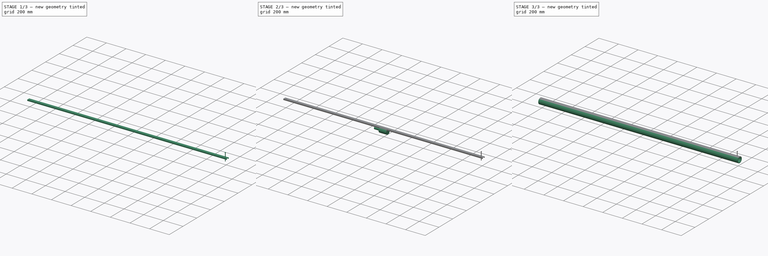
[diagram: build sequence overview — one tinted view per stage of 3, left to right]
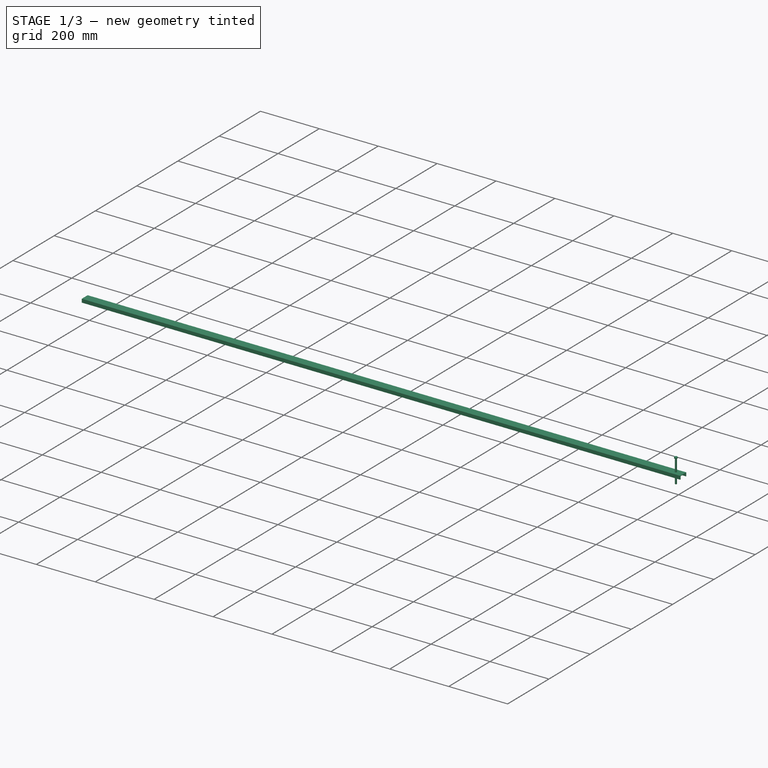
[diagram: stage 1 of 3 — iso view after this stage's code; geometry added in this stage tinted green]
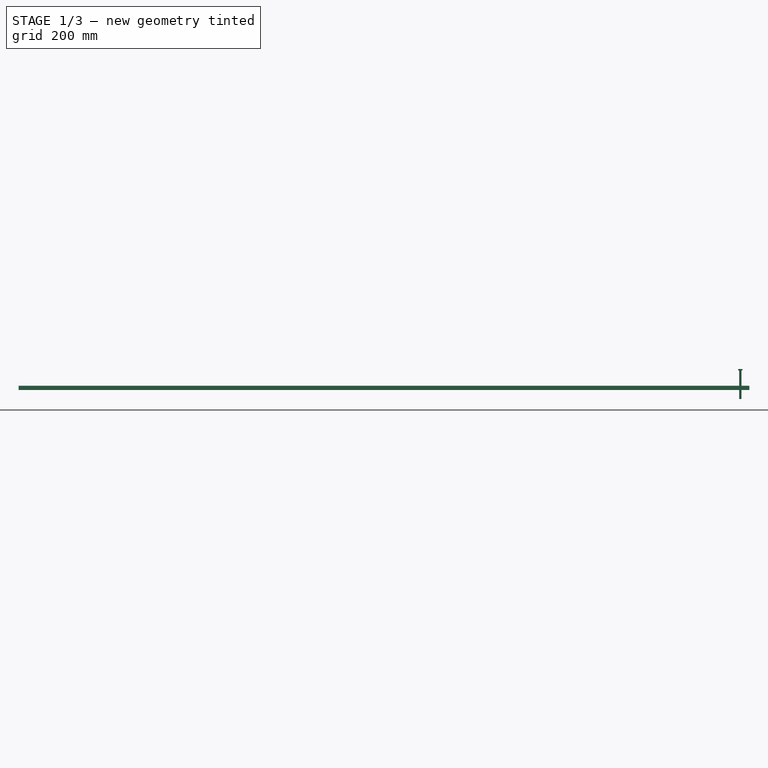
[diagram: stage 1 of 3 — front view after this stage's code; geometry added in this stage tinted green]
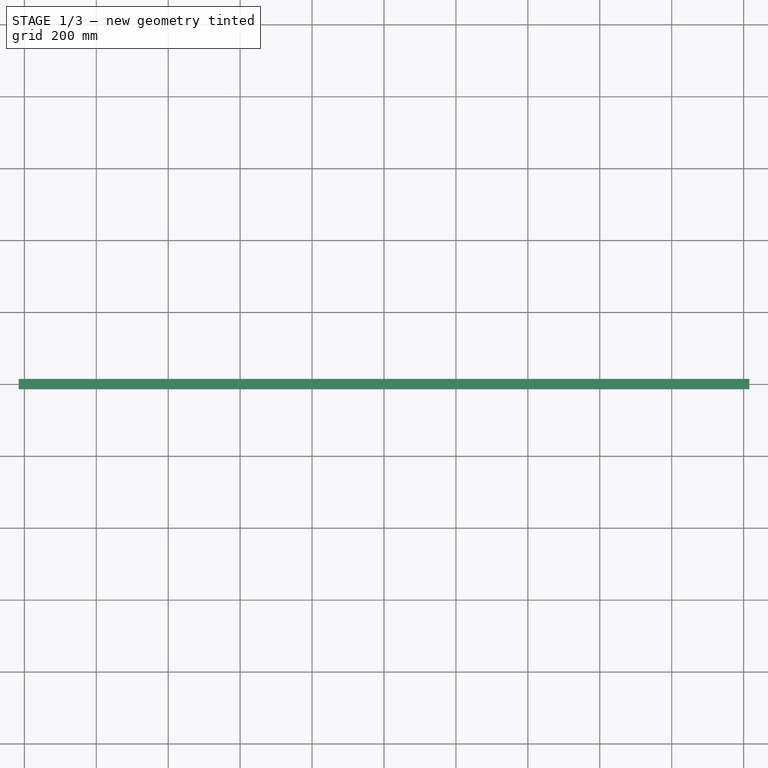
[diagram: stage 1 of 3 — top view after this stage's code; geometry added in this stage tinted green]
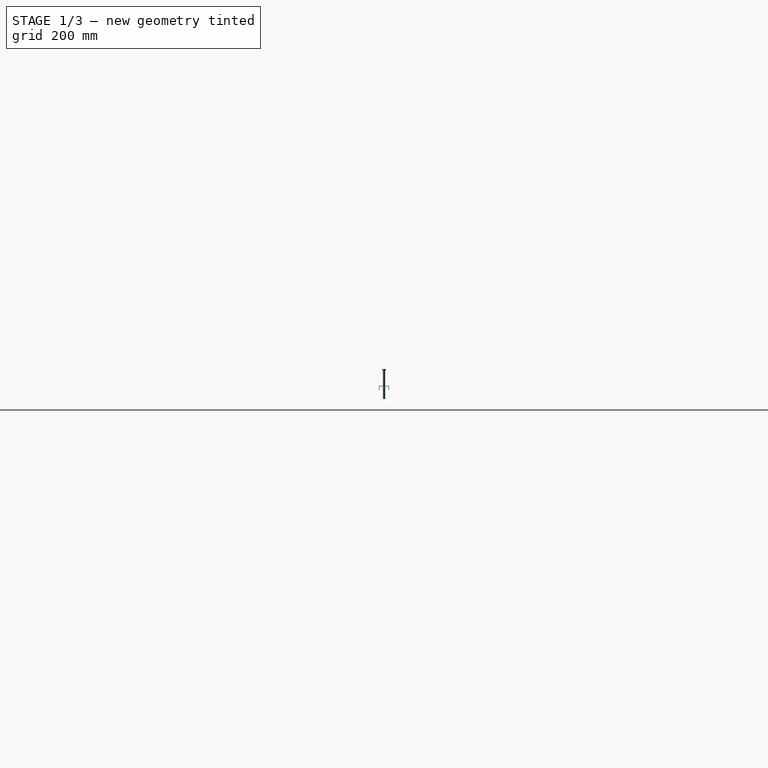
[diagram: stage 1 of 3 — right view after this stage's code; geometry added in this stage tinted green]
FCSTD DOCUMENT  (FreeCAD 0.19R21897 (Git))
Label: Roller
License: All rights reserved
LicenseURL: http://en.wikipedia.org/wiki/All_rights_reserved
objects: Sketcher::SketchObject×6, PartDesign::Pad×3, PartDesign::Body×3, App::Link×2, PartDesign::CoordinateSystem×2, PartDesign::Revolution×1, PartDesign::Pocket×1, PartDesign::Mirrored×1, Part::FeaturePython×1, App::Part×1
note: 23 computed .brp shape members not serialized (recipe doc carries the construction recipe); baked Part::Feature solids carry a one-line shape summary decoded from their .brp

FEATURE [PartDesign::Body] Body  label="Roller"
  Group = -> [Sketch003,Pad]
  Origin = -> Origin001
  Tip = -> Pad
FEATURE [Sketcher::SketchObject] Sketch004
  MapMode = 5
  Placement = pos=(0,0,0) rot=(0.57735,0.57735,0.57735;2.0944rad)
  Support = -> [YZ_Plane002]
  sketch-geometry (8):
    g0: LineSegment StartX=-12.7 StartY=14.7898 StartZ=0 EndX=-12.7 EndY=24.9779 EndZ=0
    g1: LineSegment StartX=-12.7 StartY=24.9779 StartZ=0 EndX=12.7 EndY=24.9779 EndZ=0
    g2: LineSegment StartX=12.7 StartY=24.9779 StartZ=0 EndX=12.7 EndY=14.7898 EndZ=0
    g3: LineSegment StartX=12.7 StartY=14.7898 StartZ=0 EndX=14.325 EndY=14.7898 EndZ=0
    g4: LineSegment StartX=14.325 StartY=14.7898 StartZ=0 EndX=14.325 EndY=26.5666 EndZ=0
    g5: LineSegment StartX=14.325 StartY=26.5666 StartZ=0 EndX=-14.325 EndY=26.5666 EndZ=0
    g6: LineSegment StartX=-14.325 StartY=26.5666 StartZ=0 EndX=-14.325 EndY=14.7898 EndZ=0
    g7: LineSegment StartX=-14.325 StartY=14.7898 StartZ=0 EndX=-12.7 EndY=14.7898 EndZ=0
  constraints (20):
    c: Coincident(g0,g1)
    c: Horizontal(g1)
    c: Coincident(g1,g2)
    c: Coincident(g2,g3)
    c: Horizontal(g3)
    c: Coincident(g3,g4)
    c: Coincident(g4,g5)
    c: Horizontal(g5)
    c: Coincident(g5,g6)
    c: Vertical(g6)
    c: Coincident(g6,g7)
    c: Coincident(g7,g0)
    c: Equal(g7,g3)
    c: Horizontal(g7)
    c: Vertical(g4)
    c: Vertical(g0)
    c: Symmetric(g2,g0,g-2)
    c: Vertical(g2)
    c: DistanceX(g1,g1) = 25.4
    c: DistanceX(g7,g7) = 1.625
FEATURE [PartDesign::Pad] Pad001
  Length = 2032
  Length2 = 100
  Midplane = true
  Placement = pos=(0,0,0) rot=(0.57735,0.57735,0.57735;2.0944rad)
  Profile = -> Sketch004
  Type = 0
FEATURE [PartDesign::Body] Body001  label="ClampChannel"
  Group = -> [Sketch004,Pad001,Sketch,Pocket,Mirrored]
  Origin = -> Origin002
  Placement = pos=(0,0,19.05) rot=(0,0,1;0rad)
  Tip = -> Mirrored
FEATURE [Part::FeaturePython] Screw  label="M6x79.375-Screw"  # Fasteners workbench fastener (typed FeaturePython)
  Placement = pos=(991,0,69) rot=(0,0,1;0rad)
  diameter = 8
  invert = false
  length = 14
  lengthCustom = 79.375
  matchOuter = false
  offset = 0
  thread = false
  type = 14
FEATURE [App::Link] Link  label="1/4x20tpi-screw2"
  LinkPlacement = pos=(-990.4,1.10865e-05,69.85) rot=(0,0,1;0rad)
  LinkedObject = -> Screw
  Placement = pos=(-990.4,1.10865e-05,69.85) rot=(0,0,1;0rad)
FEATURE [App::Part] Part001
  Group = -> [Link002,Body,Body001,Body002,RollerAxis,Hex,Screw,Link]
  Origin = -> Origin004
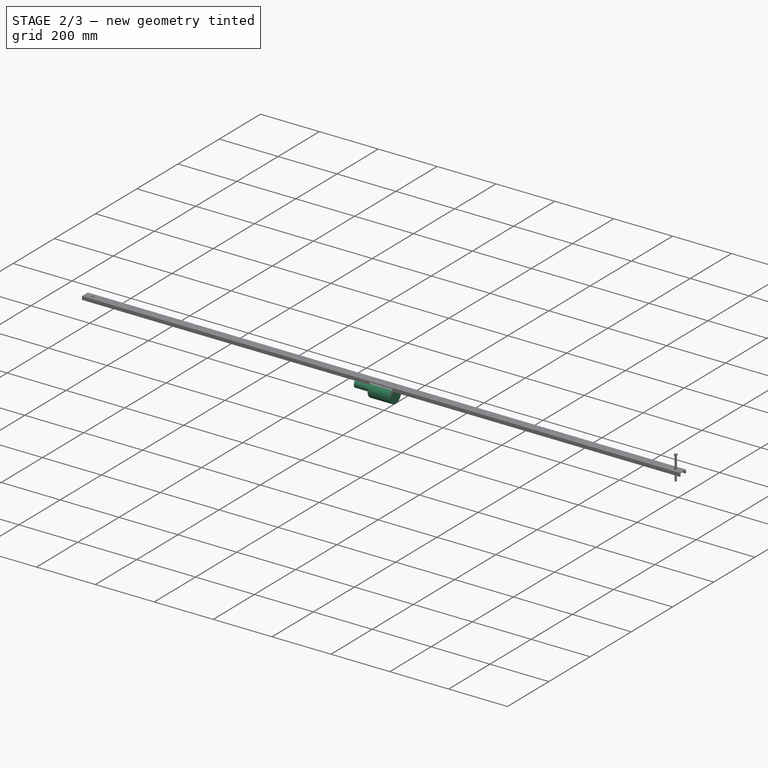
[diagram: stage 2 of 3 — iso view after this stage's code; geometry added in this stage tinted green]
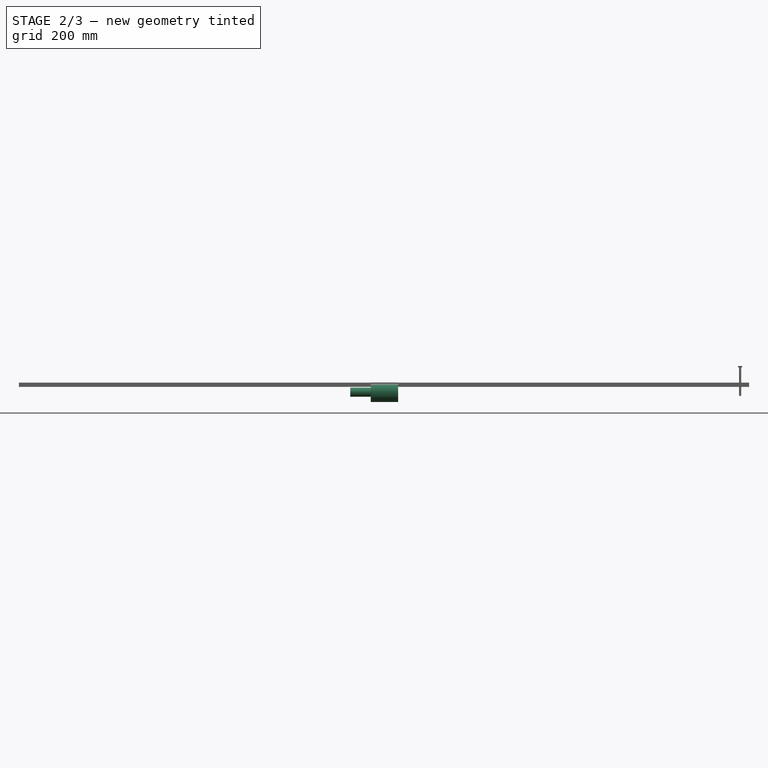
[diagram: stage 2 of 3 — front view after this stage's code; geometry added in this stage tinted green]
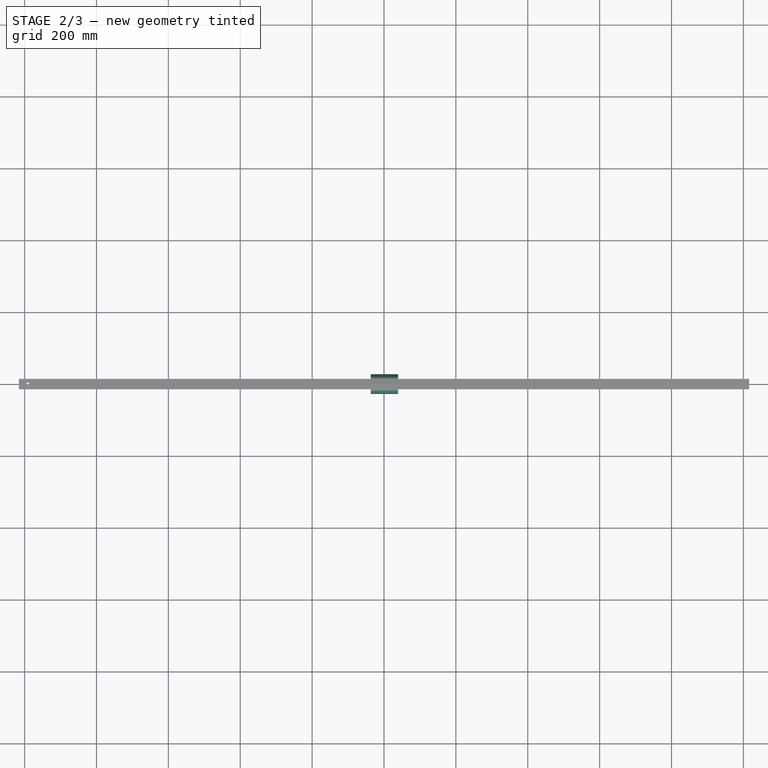
[diagram: stage 2 of 3 — top view after this stage's code; geometry added in this stage tinted green]
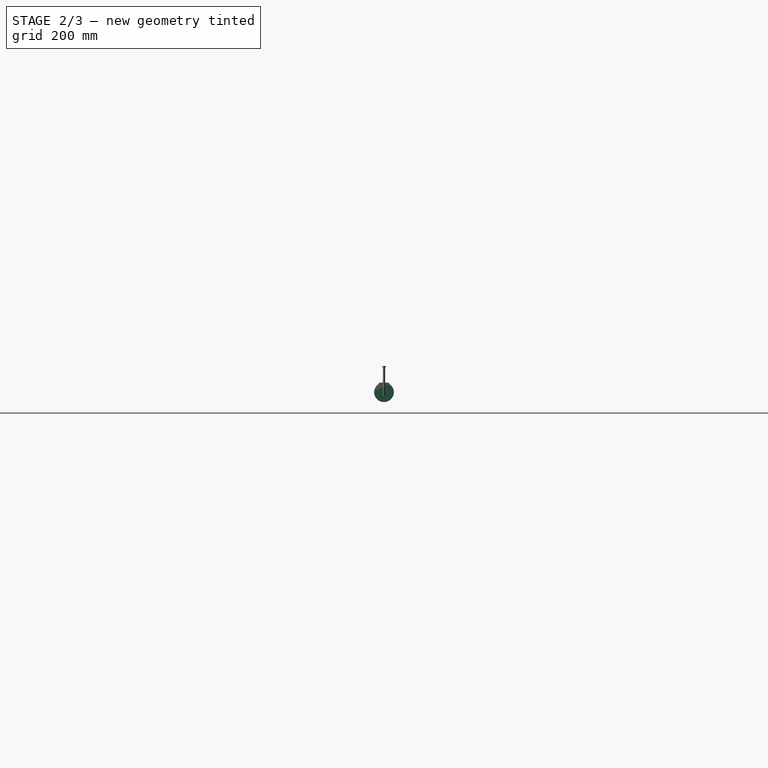
[diagram: stage 2 of 3 — right view after this stage's code; geometry added in this stage tinted green]
FEATURE [Sketcher::SketchObject] Sketch005
  MapMode = 5
  Support = -> [XY_Plane003]
  sketch-geometry (6):
    g0: LineSegment StartX=39.4665 StartY=0 StartZ=0 EndX=39.4665 EndY=27.3939 EndZ=0
    g1: LineSegment StartX=39.4665 StartY=27.3939 StartZ=0 EndX=-36.7335 EndY=27.3939 EndZ=0
    g2: LineSegment StartX=-36.7335 StartY=27.3939 StartZ=0 EndX=-36.7335 EndY=12.7 EndZ=0
    g3: LineSegment StartX=-36.7335 StartY=12.7 StartZ=0 EndX=-93.8835 EndY=12.7 EndZ=0
    g4: LineSegment StartX=-93.8835 StartY=12.7 StartZ=0 EndX=-93.8835 EndY=0 EndZ=0
    g5: LineSegment StartX=-93.8835 StartY=0 StartZ=0 EndX=39.4665 EndY=0 EndZ=0
  constraints (17):
    c: PointOnObject(g0,g-1)
    c: Vertical(g0)
    c: Coincident(g0,g1)
    c: Horizontal(g1)
    c: Coincident(g1,g2)
    c: Coincident(g2,g3)
    c: Horizontal(g3)
    c: Coincident(g3,g4)
    c: PointOnObject(g4,g-1)
    c: Vertical(g4)
    c: Coincident(g4,g5)
    c: Coincident(g5,g0)
    c: Vertical(g2)
    c: DistanceY(g0,g0) = 27.3939
    c: DistanceX(g1,g1) = 76.2
    c: DistanceY(g4,g4) = 12.7
    c: DistanceX(g3,g3) = 57.15
FEATURE [PartDesign::Revolution] Revolution
  Angle = 360
  Axis = (1,0,0)
  Base = (0,0,0)
  Profile = -> Sketch005
  ReferenceAxis = -> Sketch005 [H_Axis]
FEATURE [PartDesign::Body] Body002  label="BearingHub001"
  Group = -> [Sketch005,Revolution,Sketch006,Sketch007,Pad002]
  Origin = -> Origin003
  Placement = pos=(-979.17,0,0) rot=(0,0,1;0rad)
  Tip = -> Pad002
FEATURE [App::Link] Link002  label="BearingHub"
  LinkPlacement = pos=(979.17,0,0) rot=(0,0,1;3.14159rad)
  LinkedObject = -> Body002
  Placement = pos=(979.17,0,0) rot=(0,0,1;3.14159rad)
FEATURE [PartDesign::CoordinateSystem] RollerAxis
  AttacherType = Attacher::AttachEngine3D
  MapMode = 11
  Placement = pos=(-1016,4.547e-13,-2.82e-13) rot=(0.707107,0,0.707107;3.14159rad)
  Support = -> [Pad]
FEATURE [PartDesign::CoordinateSystem] Hex
  AttacherType = Attacher::AttachEngine3D
  AttachmentOffset = pos=(0,0,1193.8) rot=(0,0,1;0rad)
  MapMode = 11
  Placement = pos=(1099.92,0,-2.651e-13) rot=(0.707107,0,0.707107;3.14159rad)
  Support = -> [Pad002]
FEATURE [Sketcher::SketchObject] Sketch
  MapMode = 5
  Placement = pos=(-7.4e-15,1.17e-14,26.5666) rot=(0,0,-1;1.5708rad)
  Support = -> [Pad001]
  sketch-geometry (1):
    g0: Circle CenterX=0 CenterY=990.6 CenterZ=0 NormalX=0 NormalY=0 NormalZ=1 AngleXU=0 Radius=3.96875
  constraints (3):
    c: PointOnObject(g0,g-2)
    c: Diameter(g0) = 7.9375
    c: DistanceY(g0) = 990.6
FEATURE [PartDesign::Pocket] Pocket
  BaseFeature = -> Pad001
  Length = 6.35
  Length2 = 98.425
  Placement = pos=(0,0,0) rot=(0.57735,0.57735,0.57735;2.0944rad)
  Profile = -> Sketch
  Type = 0
FEATURE [PartDesign::Mirrored] Mirrored
  BaseFeature = -> Pocket
  MirrorPlane = -> Sketch [H_Axis]
  Originals = -> [Pocket]
  Placement = pos=(0,0,0) rot=(0.57735,0.57735,0.57735;2.0944rad)
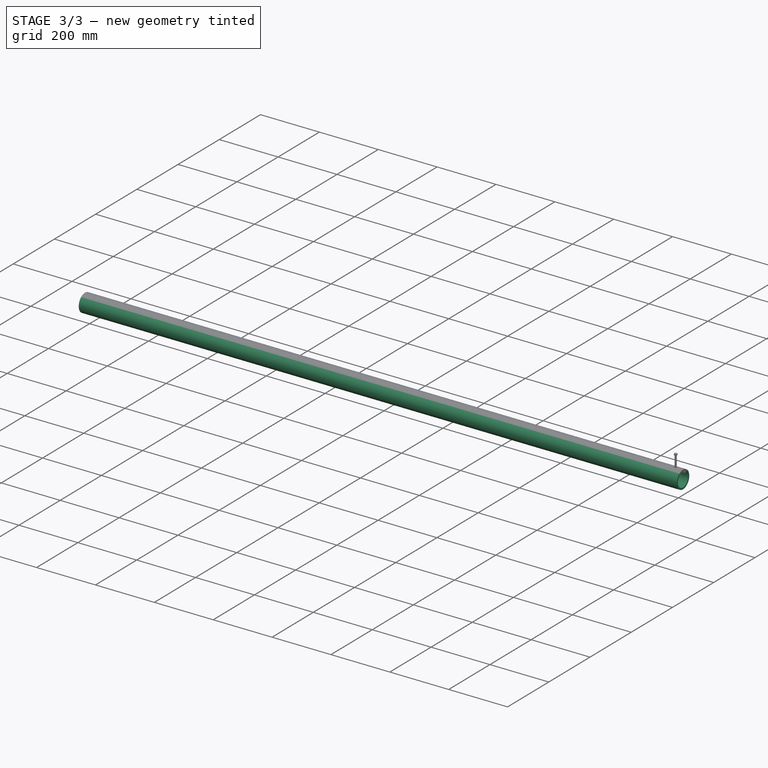
[diagram: stage 3 of 3 — iso view after this stage's code; geometry added in this stage tinted green]
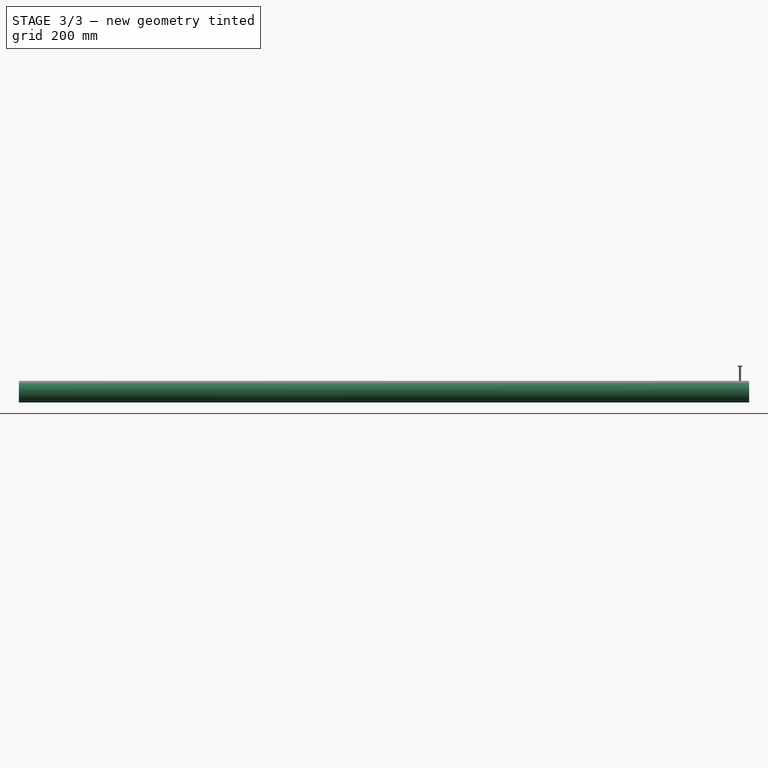
[diagram: stage 3 of 3 — front view after this stage's code; geometry added in this stage tinted green]
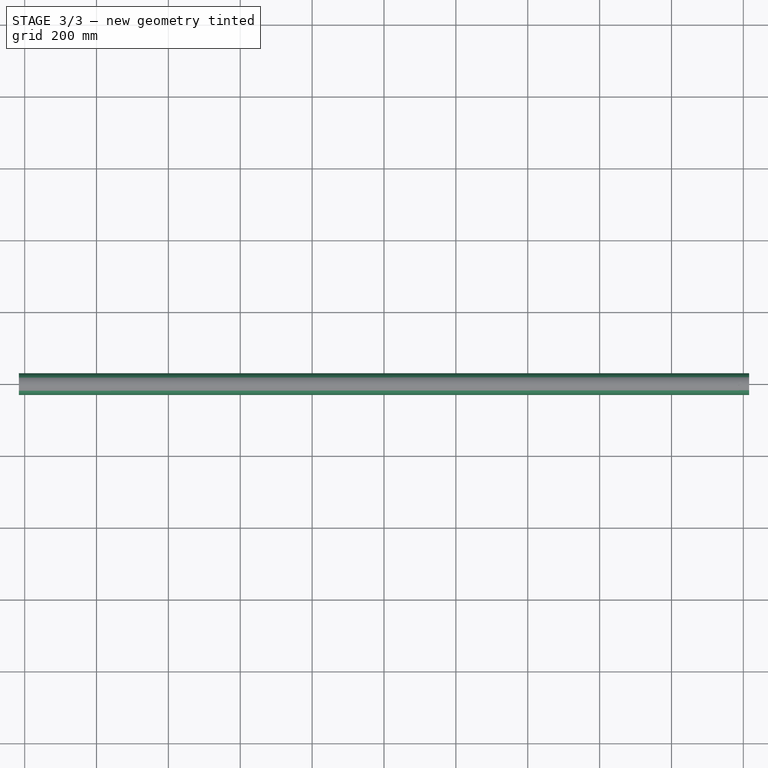
[diagram: stage 3 of 3 — top view after this stage's code; geometry added in this stage tinted green]
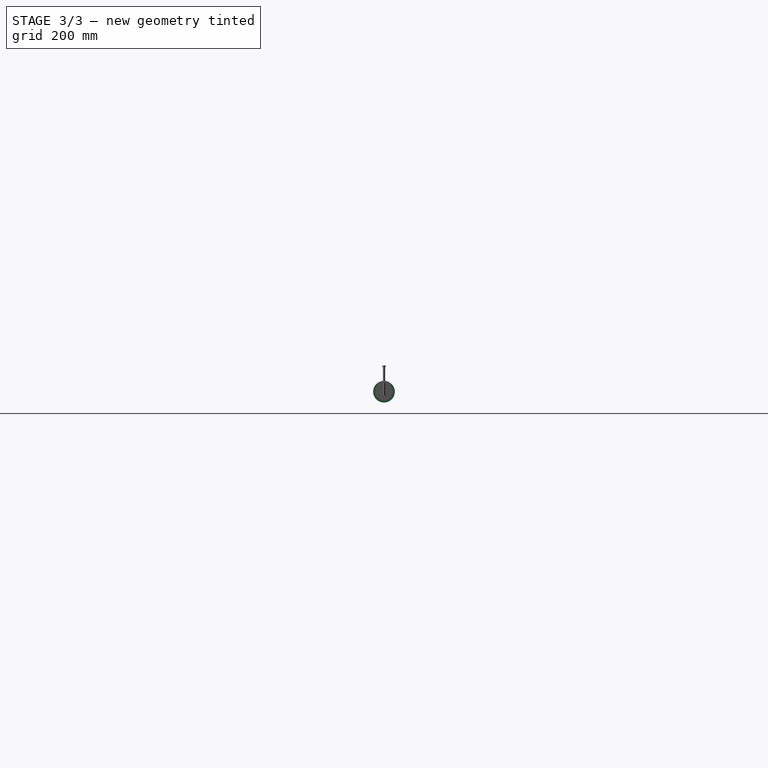
[diagram: stage 3 of 3 — right view after this stage's code; geometry added in this stage tinted green]
FEATURE [Sketcher::SketchObject] Sketch003
  MapMode = 5
  Placement = pos=(0,0,0) rot=(0.57735,0.57735,0.57735;2.0944rad)
  Support = -> [YZ_Plane001]
  sketch-geometry (3):
    g0: Circle CenterX=0 CenterY=0 CenterZ=0 NormalX=0 NormalY=0 NormalZ=1 AngleXU=0 Radius=30.1625
    g1: Circle CenterX=0 CenterY=0 CenterZ=0 NormalX=0 NormalY=0 NormalZ=1 AngleXU=0 Radius=24.6253
    g2: LineSegment [constr] StartX=-30.1625 StartY=0 StartZ=0 EndX=-24.6253 EndY=0 EndZ=0
  constraints (8):
    c: Coincident(g0,g-1)
    c: Coincident(g1,g0)
    c: Diameter(g0) = 60.325
    c: PointOnObject(g2,g0)
    c: PointOnObject(g2,g1)
    c: Horizontal(g2)
    c: Perpendicular(g1,g2)
    c: DistanceX(g2,g2) = 5.5372
FEATURE [PartDesign::Pad] Pad
  Length = 2032
  Length2 = 100
  Midplane = true
  Placement = pos=(0,0,0) rot=(0.57735,0.57735,0.57735;2.0944rad)
  Profile = -> Sketch003
  Type = 0
FEATURE [Sketcher::SketchObject] Sketch006
  MapMode = 5
  Placement = pos=(-93.8835,0,0) rot=(0.57735,-0.57735,-0.57735;2.0944rad)
  Support = -> [Revolution]
FEATURE [Sketcher::SketchObject] Sketch007
  MapMode = 5
  Placement = pos=(-93.8835,0,0) rot=(0.57735,-0.57735,-0.57735;2.0944rad)
  Support = -> [Revolution]
  sketch-geometry (7):
    g0: LineSegment StartX=8.24889 StartY=-4.7625 StartZ=0 EndX=8.24889 EndY=4.7625 EndZ=0
    g1: LineSegment StartX=8.24889 StartY=4.7625 StartZ=0 EndX=0 EndY=9.525 EndZ=0
    g2: LineSegment StartX=0 StartY=9.525 StartZ=0 EndX=-8.24889 EndY=4.7625 EndZ=0
    g3: LineSegment StartX=-8.24889 StartY=4.7625 StartZ=0 EndX=-8.24889 EndY=-4.7625 EndZ=0
    g4: LineSegment StartX=-8.24889 StartY=-4.7625 StartZ=0 EndX=7.681e-12 EndY=-9.525 EndZ=0
    g5: LineSegment StartX=7.681e-12 StartY=-9.525 StartZ=0 EndX=8.24889 EndY=-4.7625 EndZ=0
    g6: Circle [constr] CenterX=0 CenterY=0 CenterZ=0 NormalX=0 NormalY=0 NormalZ=1 AngleXU=0 Radius=9.525
  constraints (16):
    c: Coincident(g0,g1)
    c: Coincident(g1,g2)
    c: Coincident(g2,g3)
    c: Coincident(g3,g4)
    c: Coincident(g4,g5)
    c: Coincident(g5,g0)
    c: Equal(g0, g1-g5) x5
    c: PointOnObject(g0,g6)
    c: PointOnObject(g1,g6)
    c: PointOnObject(g2,g6)
    c: PointOnObject(g3,g6)
    c: PointOnObject(g4,g6)
    c: PointOnObject(g5,g6)
    c: Coincident(g6,g-1)
    c: Diameter(g6) = 19.05
    c: PointOnObject(g1,g-2)
FEATURE [PartDesign::Pad] Pad002
  BaseFeature = -> Revolution
  Length = 50
  Length2 = 100
  Profile = -> Sketch007
  Type = 0
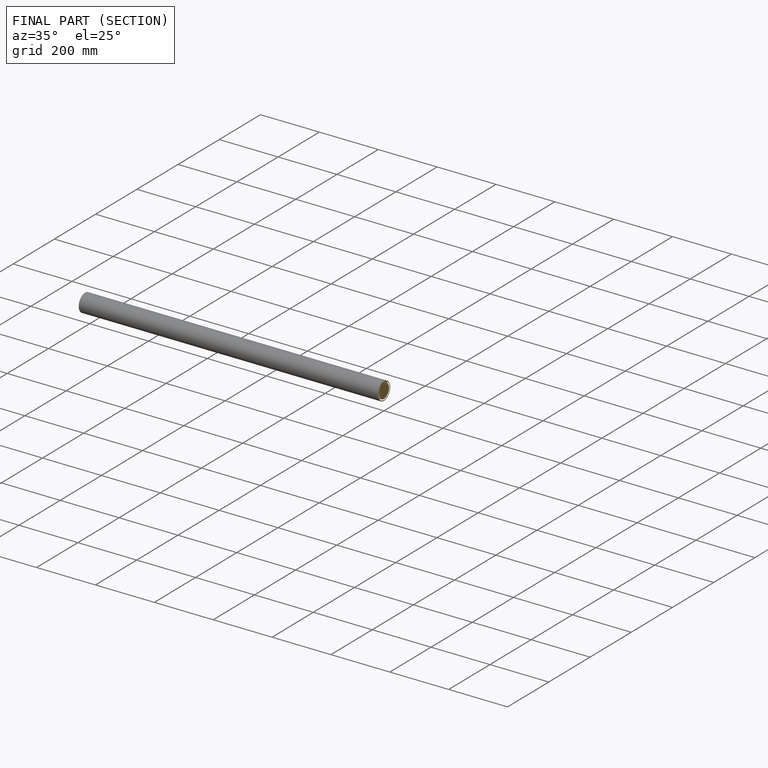
[diagram: finished part — half-section view (interior)]
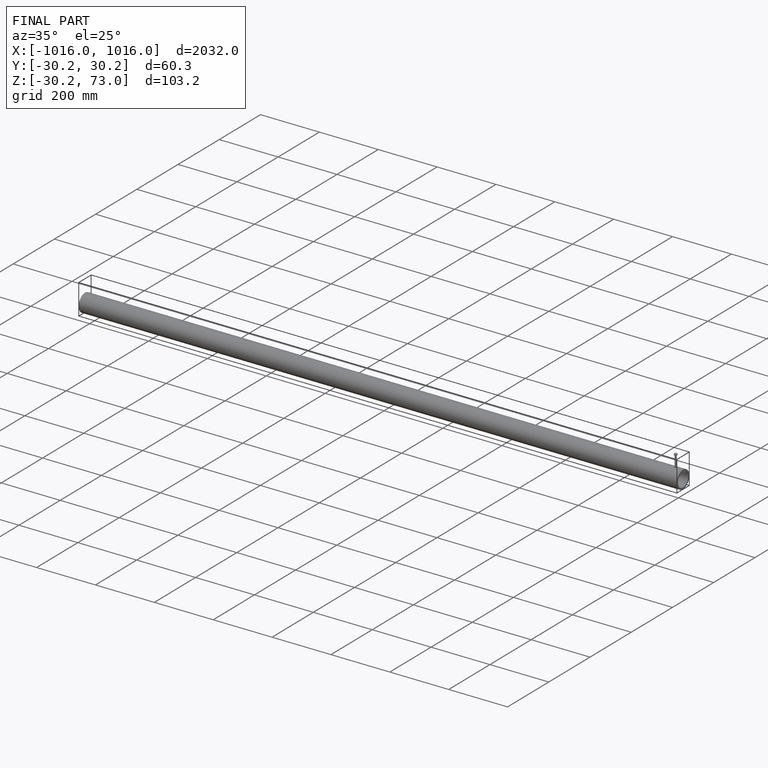
[diagram: finished part — iso view with bounding-box wireframe]
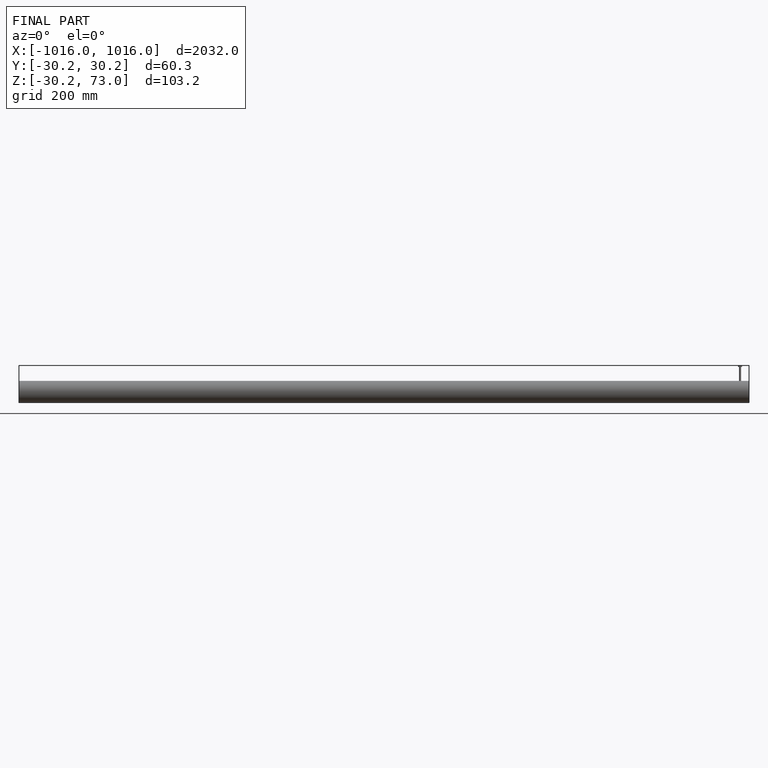
[diagram: finished part — front view with bounding-box wireframe]
